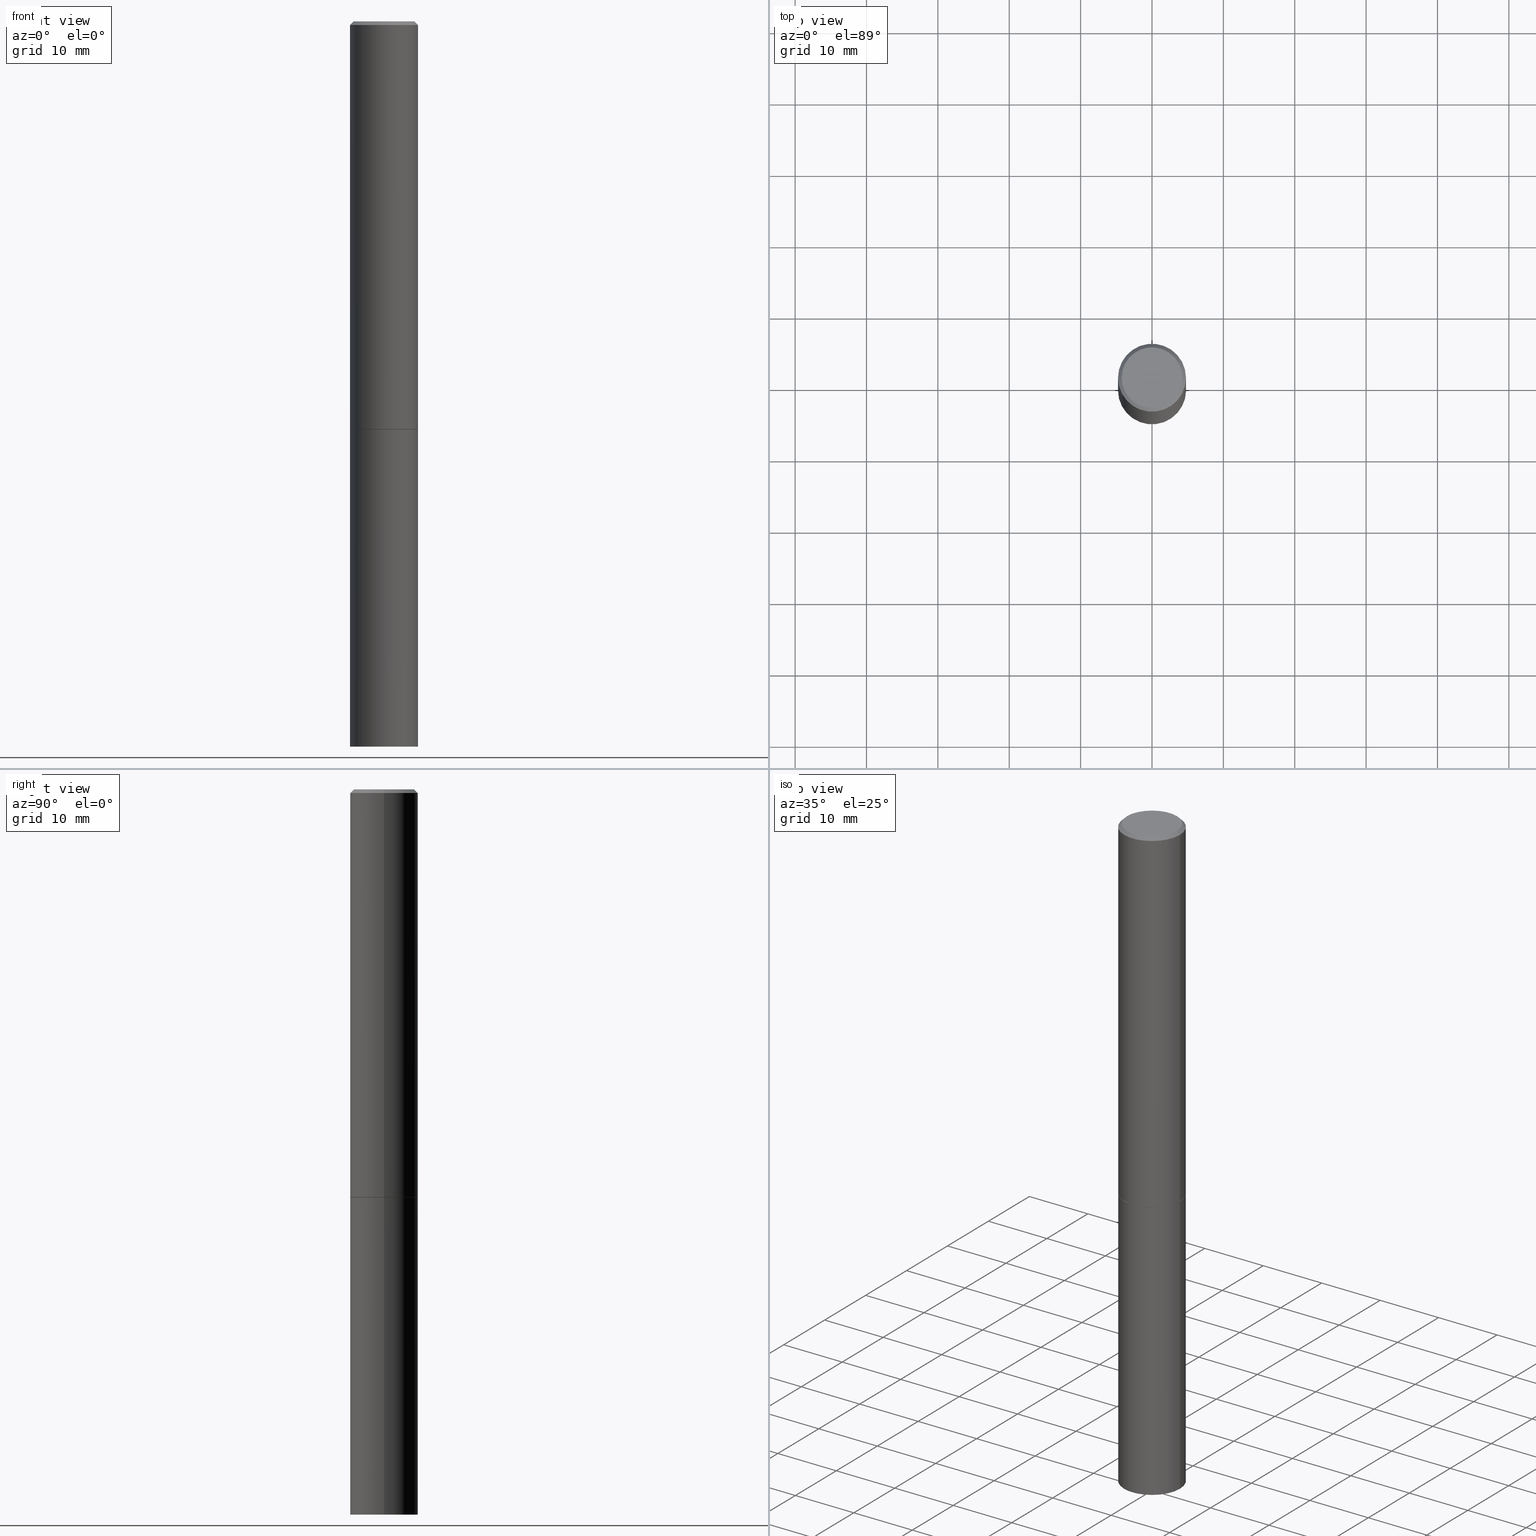
[diagram: canonical four-view strip — front | top / right | iso, engineering-drawing reading convention]
A machine part, canonical four-view strip (front | top / right | iso — engineering-drawing reading convention). The complete STEP part file that produces these views, byte-faithful:
ISO-10303-21;
HEADER;
FILE_DESCRIPTION (( 'STEP AP203' ),
    '1' );
FILE_NAME ('31962.STEP',
    '2024-02-27T14:27:44',
    ( '' ),
    ( '' ),
    'SwSTEP 2.0',
    'SolidWorks 2023',
    '' );
FILE_SCHEMA (( 'CONFIG_CONTROL_DESIGN' ));
ENDSEC;

DATA;
#1 = CARTESIAN_POINT ( 'NONE',  ( 1.309305502066272827E-15, 0.1874999999999860389, -4.000000000000000888 ) ) ;
#2 = DIRECTION ( 'NONE',  ( 1.000000000000000000, 0.000000000000000000, 0.000000000000000000 ) ) ;
#3 = AXIS2_PLACEMENT_3D ( 'NONE', #206, #238, #46 ) ;
#4 = ORIENTED_EDGE ( 'NONE', *, *, #148, .F. ) ;
#5 = EDGE_CURVE ( 'NONE', #68, #230, #110, .T. ) ;
#6 = CARTESIAN_POINT ( 'NONE',  ( 9.781875224740546387E-29, -1.396592535537258233E-14, -4.000000000000000000 ) ) ;
#7 = CARTESIAN_POINT ( 'NONE',  ( 0.000000000000000000, 0.000000000000000000, 0.000000000000000000 ) ) ;
#8 = DIRECTION ( 'NONE',  ( 1.000000000000000000, -6.982962677686265922E-15, 4.876176775795935793E-29 ) ) ;
#9 = CIRCLE ( 'NONE', #360, 0.1875000000000000278 ) ;
#10 = ADVANCED_FACE ( 'NONE', ( #94 ), #354, .T. ) ;
#11 = CARTESIAN_POINT ( 'NONE',  ( 0.000000000000000000, 0.000000000000000000, 0.000000000000000000 ) ) ;
#12 = CARTESIAN_POINT ( 'NONE',  ( 0.1864999999999999714, -9.158155551785567442E-15, -2.250000000000000444 ) ) ;
#13 = CALENDAR_DATE ( 2024, 27, 2 ) ;
#14 = ORIENTED_EDGE ( 'NONE', *, *, #5, .T. ) ;
#15 = FACE_OUTER_BOUND ( 'NONE', #143, .T. ) ;
#16 = CARTESIAN_POINT ( 'NONE',  ( -0.1875000000000000278, -9.578611554334641752E-15, -4.000000000000000000 ) ) ;
#17 = LOCAL_TIME ( 9, 27, 44.00000000000000000, #287 ) ;
#18 = VERTEX_POINT ( 'NONE', #45 ) ;
#19 = DIRECTION ( 'NONE',  ( -2.445468806185136597E-29, 3.491481338843145583E-15, 1.000000000000000000 ) ) ;
#20 = LINE ( 'NONE', #65, #301 ) ;
#21 = PERSON_AND_ORGANIZATION ( #222, #279 ) ;
#22 = DIRECTION ( 'NONE',  ( 0.7071067811865466846, -7.319954787623252890E-15, -0.7071067811865483499 ) ) ;
#23 = AXIS2_PLACEMENT_3D ( 'NONE', #11, #173, #113 ) ;
#24 = APPROVAL_ROLE ( '' ) ;
#25 = AXIS2_PLACEMENT_3D ( 'NONE', #264, #19, #75 ) ;
#26 = FACE_OUTER_BOUND ( 'NONE', #171, .T. ) ;
#27 = COORDINATED_UNIVERSAL_TIME_OFFSET ( 5, 0, .BEHIND. ) ;
#28 = CARTESIAN_POINT ( 'NONE',  ( 0.1874999999999998890, -1.309305502066174022E-15, 9.142831454617374006E-30 ) ) ;
#29 = PERSON_AND_ORGANIZATION ( #222, #279 ) ;
#30 = EDGE_CURVE ( 'NONE', #321, #62, #247, .T. ) ;
#31 = AXIS2_PLACEMENT_3D ( 'NONE', #106, #278, #33 ) ;
#32 = AXIS2_PLACEMENT_3D ( 'NONE', #183, #356, #56 ) ;
#33 = DIRECTION ( 'NONE',  ( 1.000000000000000000, -6.982962677686269077E-15, 0.000000000000000000 ) ) ;
#34 = DIRECTION ( 'NONE',  ( 1.000000000000000000, -6.982962677686269077E-15, 0.000000000000000000 ) ) ;
#35 = CIRCLE ( 'NONE', #196, 0.1674999999999997602 ) ;
#36 = ORIENTED_EDGE ( 'NONE', *, *, #223, .F. ) ;
#37 = CALENDAR_DATE ( 2024, 27, 2 ) ;
#38 = CC_DESIGN_PERSON_AND_ORGANIZATION_ASSIGNMENT ( #363, #244, ( #234 ) ) ;
#39 = EDGE_LOOP ( 'NONE', ( #355, #119, #339, #348 ) ) ;
#40 = ADVANCED_FACE ( 'NONE', ( #15 ), #87, .T. ) ;
#41 = DIRECTION ( 'NONE',  ( 1.000000000000000000, -6.982962677686261189E-15, 0.000000000000000000 ) ) ;
#42 = EDGE_LOOP ( 'NONE', ( #165, #330, #139, #201 ) ) ;
#43 = CIRCLE ( 'NONE', #25, 0.1874999999999997502 ) ;
#44 = AXIS2_PLACEMENT_3D ( 'NONE', #166, #288, #8 ) ;
#45 = CARTESIAN_POINT ( 'NONE',  ( 0.1874999999999997502, -1.356173001359023494E-15, -0.02000000000000004205 ) ) ;
#46 = DIRECTION ( 'NONE',  ( 1.000000000000000000, -6.982962677686265922E-15, 4.876176775795935793E-29 ) ) ;
#47 = CARTESIAN_POINT ( 'NONE',  ( 1.169646248512447820E-15, 0.1674999999999997602, -5.848231242562259809E-16 ) ) ;
#48 = CARTESIAN_POINT ( 'NONE',  ( 4.890937612370283668E-31, -6.982962677686305168E-17, -0.02000000000000004205 ) ) ;
#49 = DATE_AND_TIME ( #265, #118 ) ;
#50 = MANIFOLD_SOLID_BREP ( 'Body-Move/Copy2[2]', #77 ) ;
#51 = DIRECTION ( 'NONE',  ( 1.000000000000000000, -6.982962677686269077E-15, 0.000000000000000000 ) ) ;
#52 = DIRECTION ( 'NONE',  ( -0.7071067811865466846, 2.468850131082247989E-15, -0.7071067811865483499 ) ) ;
#53 = AXIS2_PLACEMENT_3D ( 'NONE', #48, #303, #294 ) ;
#54 = FACE_OUTER_BOUND ( 'NONE', #258, .T. ) ;
#55 = LINE ( 'NONE', #232, #61 ) ;
#56 = DIRECTION ( 'NONE',  ( 1.000000000000000000, -6.982962677686261189E-15, 0.000000000000000000 ) ) ;
#57 = APPROVAL_STATUS ( 'not_yet_approved' ) ;
#58 = AXIS2_PLACEMENT_3D ( 'NONE', #7, #192, #2 ) ;
#59 = PERSON_AND_ORGANIZATION ( #222, #279 ) ;
#60 = PERSON_AND_ORGANIZATION_ROLE ( 'classification_officer' ) ;
#61 = VECTOR ( 'NONE', #52, 39.37007874015748143 ) ;
#62 = VERTEX_POINT ( 'NONE', #176 ) ;
#63 = ADVANCED_FACE ( 'NONE', ( #54 ), #147, .F. ) ;
#64 = EDGE_LOOP ( 'NONE', ( #108, #318, #293, #89 ) ) ;
#65 = CARTESIAN_POINT ( 'NONE',  ( 0.1874999999999997502, -1.356173001359023494E-15, -0.02000000000000004205 ) ) ;
#66 = VECTOR ( 'NONE', #109, 39.37007874015748143 ) ;
#67 = LINE ( 'NONE', #28, #292 ) ;
#68 = VERTEX_POINT ( 'NONE', #237 ) ;
#69 = FACE_OUTER_BOUND ( 'NONE', #64, .T. ) ;
#70 = DATE_TIME_ROLE ( 'classification_date' ) ;
#71 = EDGE_CURVE ( 'NONE', #230, #68, #35, .T. ) ;
#72 = DIRECTION ( 'NONE',  ( 1.000000000000000000, -6.982962677686269077E-15, 0.000000000000000000 ) ) ;
#73 = LINE ( 'NONE', #269, #197 ) ;
#74 = ORIENTED_EDGE ( 'NONE', *, *, #207, .T. ) ;
#75 = DIRECTION ( 'NONE',  ( 1.000000000000000000, -6.982962677686265133E-15, 0.000000000000000000 ) ) ;
#76 = APPROVAL ( #154, 'UNSPECIFIED' ) ;
#77 = CLOSED_SHELL ( 'NONE', ( #40, #132, #216, #112, #322, #10, #302, #63 ) ) ;
#78 = DIRECTION ( 'NONE',  ( 2.438088387897960049E-29, -3.491481338843145188E-15, -1.000000000000000000 ) ) ;
#79 = DIRECTION ( 'NONE',  ( -1.000000000000000000, 6.982962677686265922E-15, -4.876176775795935793E-29 ) ) ;
#80 = APPLICATION_PROTOCOL_DEFINITION ( 'international standard', 'config_control_design', 1994, #167 ) ;
#81 = CYLINDRICAL_SURFACE ( 'NONE', #107, 0.1874999999999998890 ) ;
#82 = VECTOR ( 'NONE', #121, 39.37007874015748143 ) ;
#83 = ADVANCED_FACE ( 'NONE', ( #26 ), #252, .F. ) ;
#84 = APPROVAL_DATE_TIME ( #136, #284 ) ;
#85 = ADVANCED_BREP_SHAPE_REPRESENTATION ( '31962', ( #291, #50, #58 ), #228 ) ;
#86 = FACE_OUTER_BOUND ( 'NONE', #175, .T. ) ;
#87 = CONICAL_SURFACE ( 'NONE', #346, 0.1864999999999999714, 0.7853981633972946241 ) ;
#88 = CARTESIAN_POINT ( 'NONE',  ( 5.502304813916557343E-29, -7.855833012397078448E-15, -2.250000000000000000 ) ) ;
#89 = ORIENTED_EDGE ( 'NONE', *, *, #30, .F. ) ;
#90 = EDGE_LOOP ( 'NONE', ( #202, #91 ) ) ;
#91 = ORIENTED_EDGE ( 'NONE', *, *, #161, .F. ) ;
#92 = VERTEX_POINT ( 'NONE', #159 ) ;
#93 = DIRECTION ( 'NONE',  ( -2.445468806185136597E-29, 3.491481338843145583E-15, 1.000000000000000000 ) ) ;
#94 = FACE_OUTER_BOUND ( 'NONE', #179, .T. ) ;
#95 = FACE_OUTER_BOUND ( 'NONE', #225, .T. ) ;
#96 = ORIENTED_EDGE ( 'NONE', *, *, #30, .T. ) ;
#97 = CARTESIAN_POINT ( 'NONE',  ( 0.1875000000000000278, -9.161647033124408872E-15, -2.249000000000000110 ) ) ;
#98 = ADVANCED_FACE ( 'NONE', ( #128 ), #160, .T. ) ;
#99 = AXIS2_PLACEMENT_3D ( 'NONE', #169, #290, #41 ) ;
#100 = CARTESIAN_POINT ( 'NONE',  ( 5.499859345110371740E-29, -7.852341531058233864E-15, -2.249000000000000110 ) ) ;
#101 = EDGE_CURVE ( 'NONE', #365, #289, #130, .T. ) ;
#102 = CLOSED_SHELL ( 'NONE', ( #188, #98, #83, #349 ) ) ;
#103 = DATE_AND_TIME ( #186, #131 ) ;
#104 = AXIS2_PLACEMENT_3D ( 'NONE', #6, #319, #170 ) ;
#105 = ORIENTED_EDGE ( 'NONE', *, *, #71, .T. ) ;
#106 = CARTESIAN_POINT ( 'NONE',  ( 5.502304813916558464E-29, -7.855833012397078448E-15, -2.250000000000000444 ) ) ;
#107 = AXIS2_PLACEMENT_3D ( 'NONE', #190, #313, #280 ) ;
#108 = ORIENTED_EDGE ( 'NONE', *, *, #178, .F. ) ;
#109 = DIRECTION ( 'NONE',  ( -2.445468806185136877E-29, 3.491481338843145188E-15, 1.000000000000000000 ) ) ;
#110 = CIRCLE ( 'NONE', #23, 0.1674999999999997602 ) ;
#111 = APPROVAL_PERSON_ORGANIZATION ( #309, #76, #24 ) ;
#112 = ADVANCED_FACE ( 'NONE', ( #250 ), #220, .T. ) ;
#113 = DIRECTION ( 'NONE',  ( 1.000000000000000000, -6.982962677686265922E-15, 4.876176775795935793E-29 ) ) ;
#114 = DIRECTION ( 'NONE',  ( 0.7071067811864388819, -2.468850131081119129E-15, 0.7071067811866561525 ) ) ;
#115 = DATE_AND_TIME ( #13, #364 ) ;
#116 = CARTESIAN_POINT ( 'NONE',  ( 5.502304813916557343E-29, -7.855833012397078448E-15, -2.250000000000000000 ) ) ;
#117 = CARTESIAN_POINT ( 'NONE',  ( 4.890937612370283668E-31, -6.982962677686305168E-17, -0.02000000000000004205 ) ) ;
#118 = LOCAL_TIME ( 9, 27, 44.00000000000000000, #337 ) ;
#119 = ORIENTED_EDGE ( 'NONE', *, *, #223, .T. ) ;
#120 = ORIENTED_EDGE ( 'NONE', *, *, #178, .T. ) ;
#121 = DIRECTION ( 'NONE',  ( -0.7071067811864388819, 7.493145998869961307E-15, 0.7071067811866561525 ) ) ;
#122 = ORIENTED_EDGE ( 'NONE', *, *, #101, .T. ) ;
#123 = CARTESIAN_POINT ( 'NONE',  ( 5.502304813916558464E-29, -7.855833012397078448E-15, -2.250000000000000444 ) ) ;
#124 = APPLICATION_PROTOCOL_DEFINITION ( 'international standard', 'config_control_design', 1994, #306 ) ;
#125 = CARTESIAN_POINT ( 'NONE',  ( -0.1875000000000000278, -9.578611554334641752E-15, -2.250000000000000000 ) ) ;
#126 = PERSON_AND_ORGANIZATION ( #222, #279 ) ;
#127 = CARTESIAN_POINT ( 'NONE',  ( 4.890937612370283668E-31, -6.982962677686305168E-17, -0.02000000000000004205 ) ) ;
#128 = FACE_OUTER_BOUND ( 'NONE', #90, .T. ) ;
#129 = APPROVAL_STATUS ( 'not_yet_approved' ) ;
#130 = CIRCLE ( 'NONE', #31, 0.1864999999999999714 ) ;
#131 = LOCAL_TIME ( 9, 27, 44.00000000000000000, #182 ) ;
#132 = ADVANCED_FACE ( 'NONE', ( #333 ), #81, .T. ) ;
#133 =( NAMED_UNIT ( * ) PLANE_ANGLE_UNIT ( ) SI_UNIT ( $, .RADIAN. ) );
#134 = ORIENTED_EDGE ( 'NONE', *, *, #285, .T. ) ;
#135 = CARTESIAN_POINT ( 'NONE',  ( -0.1875000000000000278, 1.332267629550188046E-15, -9.223003294227947991E-30 ) ) ;
#136 = DATE_AND_TIME ( #37, #17 ) ;
#137 = APPROVAL_DATE_TIME ( #49, #344 ) ;
#138 = FACE_OUTER_BOUND ( 'NONE', #298, .T. ) ;
#139 = ORIENTED_EDGE ( 'NONE', *, *, #317, .T. ) ;
#140 = CC_DESIGN_SECURITY_CLASSIFICATION ( #215, ( #234 ) ) ;
#141 = ORIENTED_EDGE ( 'NONE', *, *, #235, .F. ) ;
#142 = DIRECTION ( 'NONE',  ( -2.445468806185136877E-29, 3.491481338843145188E-15, 1.000000000000000000 ) ) ;
#143 = EDGE_LOOP ( 'NONE', ( #122, #134, #203, #323 ) ) ;
#144 = CARTESIAN_POINT ( 'NONE',  ( 5.502304813916558464E-29, -7.855833012397078448E-15, -2.250000000000000444 ) ) ;
#145 = DIRECTION ( 'NONE',  ( -2.445468806185136597E-29, 3.491481338843145583E-15, 1.000000000000000000 ) ) ;
#146 = PRODUCT_RELATED_PRODUCT_CATEGORY ( 'detail', '', ( #189 ) ) ;
#147 = PLANE ( 'NONE',  #359 ) ;
#148 = EDGE_CURVE ( 'NONE', #62, #321, #273, .T. ) ;
#149 = DIRECTION ( 'NONE',  ( -2.445468806185136597E-29, 3.491481338843145583E-15, 1.000000000000000000 ) ) ;
#150 = CIRCLE ( 'NONE', #53, 0.1874999999999997502 ) ;
#151 = CYLINDRICAL_SURFACE ( 'NONE', #262, 0.1874999999999998890 ) ;
#152 = APPROVAL_DATE_TIME ( #103, #76 ) ;
#153 = DIRECTION ( 'NONE',  ( 1.000000000000000000, -6.982962677686261189E-15, 0.000000000000000000 ) ) ;
#154 = APPROVAL_STATUS ( 'not_yet_approved' ) ;
#155 = UNCERTAINTY_MEASURE_WITH_UNIT (LENGTH_MEASURE( 1.000000000000000082E-05 ), #163, 'distance_accuracy_value', 'NONE');
#156 = CIRCLE ( 'NONE', #104, 0.1875000000000000278 ) ;
#157 = CONICAL_SURFACE ( 'NONE', #316, 0.1874999999999997502, 0.7853981633974471688 ) ;
#158 = PERSON_AND_ORGANIZATION_ROLE ( 'design_owner' ) ;
#159 = CARTESIAN_POINT ( 'NONE',  ( -0.1875000000000000278, -2.628817949367357971E-15, -2.249000000000000110 ) ) ;
#160 = PLANE ( 'NONE',  #191 ) ;
#161 = EDGE_CURVE ( 'NONE', #295, #352, #156, .T. ) ;
#162 = CIRCLE ( 'NONE', #181, 0.1864999999999999714 ) ;
#163 =( CONVERSION_BASED_UNIT ( 'INCH', #314 ) LENGTH_UNIT ( ) NAMED_UNIT ( #213 ) );
#164 = CIRCLE ( 'NONE', #99, 0.1875000000000000278 ) ;
#165 = ORIENTED_EDGE ( 'NONE', *, *, #281, .F. ) ;
#166 = CARTESIAN_POINT ( 'NONE',  ( 0.000000000000000000, 0.000000000000000000, 0.000000000000000000 ) ) ;
#167 = APPLICATION_CONTEXT ( 'configuration controlled 3d designs of mechanical parts and assemblies' ) ;
#168 = ORIENTED_EDGE ( 'NONE', *, *, #308, .T. ) ;
#169 = CARTESIAN_POINT ( 'NONE',  ( 9.781875224740546387E-29, -1.396592535537258233E-14, -4.000000000000000000 ) ) ;
#170 = DIRECTION ( 'NONE',  ( 1.000000000000000000, -6.982962677686261189E-15, 0.000000000000000000 ) ) ;
#171 = EDGE_LOOP ( 'NONE', ( #263, #96 ) ) ;
#172 = CARTESIAN_POINT ( 'NONE',  ( -0.1864999999999999714, -6.530670810204491608E-15, -2.250000000000000444 ) ) ;
#173 = DIRECTION ( 'NONE',  ( -2.445468806185136597E-29, 3.491481338843145583E-15, 1.000000000000000000 ) ) ;
#174 = CARTESIAN_POINT ( 'NONE',  ( -0.1874999999999998890, 1.332267629550187060E-15, -9.223003294227942385E-30 ) ) ;
#175 = EDGE_LOOP ( 'NONE', ( #74, #120, #4, #141 ) ) ;
#176 = CARTESIAN_POINT ( 'NONE',  ( 0.1875000000000000278, -9.165138514463253457E-15, -2.250000000000000000 ) ) ;
#177 = CARTESIAN_POINT ( 'NONE',  ( 0.000000000000000000, 0.000000000000000000, 0.000000000000000000 ) ) ;
#178 = EDGE_CURVE ( 'NONE', #295, #321, #261, .T. ) ;
#179 = EDGE_LOOP ( 'NONE', ( #208, #286, #351, #36 ) ) ;
#180 = CARTESIAN_POINT ( 'NONE',  ( 0.1674999999999997602, -1.252653207992876711E-15, 8.469775550109228175E-30 ) ) ;
#181 = AXIS2_PLACEMENT_3D ( 'NONE', #123, #240, #34 ) ;
#182 = COORDINATED_UNIVERSAL_TIME_OFFSET ( 5, 0, .BEHIND. ) ;
#183 = CARTESIAN_POINT ( 'NONE',  ( 5.499859345110371740E-29, -7.852341531058233864E-15, -2.249000000000000110 ) ) ;
#184 = COORDINATED_UNIVERSAL_TIME_OFFSET ( 5, 0, .BEHIND. ) ;
#185 = AXIS2_PLACEMENT_3D ( 'NONE', #300, #266, #51 ) ;
#186 = CALENDAR_DATE ( 2024, 27, 2 ) ;
#187 = DIRECTION ( 'NONE',  ( -1.000000000000000000, 6.982962677686265922E-15, -4.876176775795935793E-29 ) ) ;
#188 = ADVANCED_FACE ( 'NONE', ( #86 ), #195, .T. ) ;
#189 = PRODUCT ( '31962', '31962', '', ( #310 ) ) ;
#190 = CARTESIAN_POINT ( 'NONE',  ( 0.000000000000000000, 0.000000000000000000, 0.000000000000000000 ) ) ;
#191 = AXIS2_PLACEMENT_3D ( 'NONE', #1, #338, #79 ) ;
#192 = DIRECTION ( 'NONE',  ( 0.000000000000000000, 0.000000000000000000, 1.000000000000000000 ) ) ;
#193 = LOCAL_TIME ( 9, 27, 44.00000000000000000, #27 ) ;
#194 = EDGE_LOOP ( 'NONE', ( #198, #350, #224, #345 ) ) ;
#195 = CYLINDRICAL_SURFACE ( 'NONE', #44, 0.1875000000000000278 ) ;
#196 = AXIS2_PLACEMENT_3D ( 'NONE', #357, #336, #248 ) ;
#197 = VECTOR ( 'NONE', #142, 39.37007874015748143 ) ;
#198 = ORIENTED_EDGE ( 'NONE', *, *, #226, .T. ) ;
#199 = DIRECTION ( 'NONE',  ( 1.000000000000000000, -6.982962677686266711E-15, 0.000000000000000000 ) ) ;
#200 = ORIENTED_EDGE ( 'NONE', *, *, #317, .F. ) ;
#201 = ORIENTED_EDGE ( 'NONE', *, *, #296, .T. ) ;
#202 = ORIENTED_EDGE ( 'NONE', *, *, #207, .F. ) ;
#203 = ORIENTED_EDGE ( 'NONE', *, *, #226, .F. ) ;
#204 = LINE ( 'NONE', #174, #274 ) ;
#205 = DIRECTION ( 'NONE',  ( 1.000000000000000000, -6.982962677686266711E-15, 0.000000000000000000 ) ) ;
#206 = CARTESIAN_POINT ( 'NONE',  ( 5.502304813916558464E-29, -7.855833012397078448E-15, -2.250000000000000444 ) ) ;
#207 = EDGE_CURVE ( 'NONE', #352, #295, #164, .T. ) ;
#208 = ORIENTED_EDGE ( 'NONE', *, *, #285, .F. ) ;
#209 = DIRECTION ( 'NONE',  ( 1.000000000000000000, -6.982962677686265922E-15, 4.876176775795935793E-29 ) ) ;
#210 = PERSON_AND_ORGANIZATION_ROLE ( 'design_supplier' ) ;
#211 = CIRCLE ( 'NONE', #32, 0.1875000000000000278 ) ;
#212 = DIRECTION ( 'NONE',  ( -1.000000000000000000, 6.982962677686265133E-15, 0.000000000000000000 ) ) ;
#213 = DIMENSIONAL_EXPONENTS ( 1.000000000000000000, 0.000000000000000000, 0.000000000000000000, 0.000000000000000000, 0.000000000000000000, 0.000000000000000000, 0.000000000000000000 ) ;
#214 = DATE_AND_TIME ( #245, #193 ) ;
#215 = SECURITY_CLASSIFICATION ( '', '', #299 ) ;
#216 = ADVANCED_FACE ( 'NONE', ( #138 ), #157, .T. ) ;
#217 = APPROVAL_ROLE ( '' ) ;
#218 = DIRECTION ( 'NONE',  ( 2.445468806185136597E-29, -3.491481338843145583E-15, -1.000000000000000000 ) ) ;
#219 = DIRECTION ( 'NONE',  ( -2.445468806185136877E-29, 3.491481338843145188E-15, 1.000000000000000000 ) ) ;
#220 = CONICAL_SURFACE ( 'NONE', #227, 0.1874999999999997502, 0.7853981633974471688 ) ;
#221 = APPROVAL_PERSON_ORGANIZATION ( #29, #344, #217 ) ;
#222 = PERSON ( 'UNSPECIFIED', 'UNSPECIFIED', 'UNSPECIFIED', ('UNSPECIFIED'), ('UNSPECIFIED'), ('UNSPECIFIED') ) ;
#223 = EDGE_CURVE ( 'NONE', #92, #320, #211, .T. ) ;
#224 = ORIENTED_EDGE ( 'NONE', *, *, #308, .F. ) ;
#225 = EDGE_LOOP ( 'NONE', ( #331, #315 ) ) ;
#226 = EDGE_CURVE ( 'NONE', #320, #92, #9, .T. ) ;
#227 = AXIS2_PLACEMENT_3D ( 'NONE', #127, #218, #342 ) ;
#228 =( GEOMETRIC_REPRESENTATION_CONTEXT ( 3 ) GLOBAL_UNCERTAINTY_ASSIGNED_CONTEXT ( ( #155 ) ) GLOBAL_UNIT_ASSIGNED_CONTEXT ( ( #163, #133, #254 ) ) REPRESENTATION_CONTEXT ( 'NONE', 'WORKASPACE' ) );
#229 = PERSON_AND_ORGANIZATION ( #222, #279 ) ;
#230 = VERTEX_POINT ( 'NONE', #180 ) ;
#231 = CC_DESIGN_DATE_AND_TIME_ASSIGNMENT ( #115, #70, ( #215 ) ) ;
#232 = CARTESIAN_POINT ( 'NONE',  ( -0.1874999999999997502, 1.239475875289309935E-15, -0.02000000000000004205 ) ) ;
#233 = DIRECTION ( 'NONE',  ( 2.438088387897960049E-29, -3.491481338843145188E-15, -1.000000000000000000 ) ) ;
#234 = PRODUCT_DEFINITION_FORMATION_WITH_SPECIFIED_SOURCE ( 'ANY', '', #189, .NOT_KNOWN. ) ;
#235 = EDGE_CURVE ( 'NONE', #352, #62, #73, .T. ) ;
#236 = DIRECTION ( 'NONE',  ( 2.445468806185136597E-29, -3.491481338843145583E-15, -1.000000000000000000 ) ) ;
#237 = CARTESIAN_POINT ( 'NONE',  ( -0.1674999999999997602, 1.204561061900878878E-15, -8.301862719484099178E-30 ) ) ;
#238 = DIRECTION ( 'NONE',  ( -2.438088387897960049E-29, 3.491481338843145188E-15, 1.000000000000000000 ) ) ;
#239 = DESIGN_CONTEXT ( 'detailed design', #306, 'design' ) ;
#240 = DIRECTION ( 'NONE',  ( -2.445468806185136597E-29, 3.491481338843145583E-15, 1.000000000000000000 ) ) ;
#241 = CC_DESIGN_DATE_AND_TIME_ASSIGNMENT ( #214, #334, ( #271 ) ) ;
#242 = DIRECTION ( 'NONE',  ( 1.000000000000000000, -6.982962677686265922E-15, 4.876176775795935793E-29 ) ) ;
#243 = VECTOR ( 'NONE', #114, 39.37007874015748143 ) ;
#244 = PERSON_AND_ORGANIZATION_ROLE ( 'creator' ) ;
#245 = CALENDAR_DATE ( 2024, 27, 2 ) ;
#246 = EDGE_CURVE ( 'NONE', #92, #326, #204, .T. ) ;
#247 = CIRCLE ( 'NONE', #282, 0.1875000000000000278 ) ;
#248 = DIRECTION ( 'NONE',  ( 1.000000000000000000, -6.982962677686265922E-15, 4.876176775795935793E-29 ) ) ;
#249 = CC_DESIGN_APPROVAL ( #284, ( #215 ) ) ;
#250 = FACE_OUTER_BOUND ( 'NONE', #42, .T. ) ;
#251 = SHAPE_DEFINITION_REPRESENTATION ( #311, #85 ) ;
#252 = PLANE ( 'NONE',  #335 ) ;
#253 = APPROVAL_ROLE ( '' ) ;
#254 =( NAMED_UNIT ( * ) SI_UNIT ( $, .STERADIAN. ) SOLID_ANGLE_UNIT ( ) );
#255 = DIRECTION ( 'NONE',  ( -2.445468806185136597E-29, 3.491481338843145583E-15, 1.000000000000000000 ) ) ;
#256 =( LENGTH_UNIT ( ) NAMED_UNIT ( * ) SI_UNIT ( $, .METRE. ) );
#257 = CC_DESIGN_APPROVAL ( #344, ( #234 ) ) ;
#258 = EDGE_LOOP ( 'NONE', ( #14, #105 ) ) ;
#259 = ORIENTED_EDGE ( 'NONE', *, *, #71, .F. ) ;
#260 = EDGE_CURVE ( 'NONE', #365, #320, #272, .T. ) ;
#261 = LINE ( 'NONE', #135, #66 ) ;
#262 = AXIS2_PLACEMENT_3D ( 'NONE', #353, #93, #242 ) ;
#263 = ORIENTED_EDGE ( 'NONE', *, *, #148, .T. ) ;
#264 = CARTESIAN_POINT ( 'NONE',  ( 4.890937612370283668E-31, -6.982962677686305168E-17, -0.02000000000000004205 ) ) ;
#265 = CALENDAR_DATE ( 2024, 27, 2 ) ;
#266 = DIRECTION ( 'NONE',  ( -2.445468806185136597E-29, 3.491481338843145583E-15, 1.000000000000000000 ) ) ;
#267 = LINE ( 'NONE', #172, #82 ) ;
#268 = DIRECTION ( 'NONE',  ( -1.000000000000000000, 6.982962677686265922E-15, -4.876176775795935793E-29 ) ) ;
#269 = CARTESIAN_POINT ( 'NONE',  ( 0.1875000000000000278, -1.309305502066175008E-15, 9.142831454617381013E-30 ) ) ;
#270 = CARTESIAN_POINT ( 'NONE',  ( 0.1875000000000000278, -1.527523085743875734E-14, -4.000000000000000000 ) ) ;
#271 = PRODUCT_DEFINITION ( 'UNKNOWN', '', #234, #239 ) ;
#272 = LINE ( 'NONE', #12, #243 ) ;
#273 = CIRCLE ( 'NONE', #324, 0.1875000000000000278 ) ;
#274 = VECTOR ( 'NONE', #304, 39.37007874015748143 ) ;
#275 = PERSON_AND_ORGANIZATION_ROLE ( 'creator' ) ;
#276 = CARTESIAN_POINT ( 'NONE',  ( 1.309305502066230031E-15, 0.1874999999999921729, -2.250000000000000444 ) ) ;
#277 = ORIENTED_EDGE ( 'NONE', *, *, #281, .T. ) ;
#278 = DIRECTION ( 'NONE',  ( -2.445468806185136597E-29, 3.491481338843145583E-15, 1.000000000000000000 ) ) ;
#279 = ORGANIZATION ( 'UNSPECIFIED', 'UNSPECIFIED', '' ) ;
#280 = DIRECTION ( 'NONE',  ( 1.000000000000000000, -6.982962677686265922E-15, 4.876176775795935793E-29 ) ) ;
#281 = EDGE_CURVE ( 'NONE', #230, #18, #20, .T. ) ;
#282 = AXIS2_PLACEMENT_3D ( 'NONE', #116, #297, #205 ) ;
#283 = CC_DESIGN_APPROVAL ( #76, ( #271 ) ) ;
#284 = APPROVAL ( #57, 'UNSPECIFIED' ) ;
#285 = EDGE_CURVE ( 'NONE', #289, #92, #267, .T. ) ;
#286 = ORIENTED_EDGE ( 'NONE', *, *, #362, .T. ) ;
#287 = COORDINATED_UNIVERSAL_TIME_OFFSET ( 5, 0, .BEHIND. ) ;
#288 = DIRECTION ( 'NONE',  ( -2.445468806185136597E-29, 3.491481338843145583E-15, 1.000000000000000000 ) ) ;
#289 = VERTEX_POINT ( 'NONE', #358 ) ;
#290 = DIRECTION ( 'NONE',  ( -2.445468806185136597E-29, 3.491481338843145583E-15, 1.000000000000000000 ) ) ;
#291 = MANIFOLD_SOLID_BREP ( 'Body-Move/Copy2[1]', #102 ) ;
#292 = VECTOR ( 'NONE', #219, 39.37007874015748143 ) ;
#293 = ORIENTED_EDGE ( 'NONE', *, *, #235, .T. ) ;
#294 = DIRECTION ( 'NONE',  ( 1.000000000000000000, -6.982962677686265133E-15, 0.000000000000000000 ) ) ;
#295 = VERTEX_POINT ( 'NONE', #16 ) ;
#296 = EDGE_CURVE ( 'NONE', #326, #18, #150, .T. ) ;
#297 = DIRECTION ( 'NONE',  ( -2.445468806185136597E-29, 3.491481338843145583E-15, 1.000000000000000000 ) ) ;
#298 = EDGE_LOOP ( 'NONE', ( #259, #277, #168, #200 ) ) ;
#299 = SECURITY_CLASSIFICATION_LEVEL ( 'unclassified' ) ;
#300 = CARTESIAN_POINT ( 'NONE',  ( 5.502304813916558464E-29, -7.855833012397078448E-15, -2.250000000000000444 ) ) ;
#301 = VECTOR ( 'NONE', #22, 39.37007874015748143 ) ;
#302 = ADVANCED_FACE ( 'NONE', ( #95 ), #332, .F. ) ;
#303 = DIRECTION ( 'NONE',  ( -2.445468806185136597E-29, 3.491481338843145583E-15, 1.000000000000000000 ) ) ;
#304 = DIRECTION ( 'NONE',  ( -2.445468806185136877E-29, 3.491481338843145188E-15, 1.000000000000000000 ) ) ;
#305 = CC_DESIGN_PERSON_AND_ORGANIZATION_ASSIGNMENT ( #229, #60, ( #215 ) ) ;
#306 = APPLICATION_CONTEXT ( 'configuration controlled 3d designs of mechanical parts and assemblies' ) ;
#307 = PERSON_AND_ORGANIZATION ( #222, #279 ) ;
#308 = EDGE_CURVE ( 'NONE', #18, #326, #43, .T. ) ;
#309 = PERSON_AND_ORGANIZATION ( #222, #279 ) ;
#310 = MECHANICAL_CONTEXT ( 'NONE', #167, 'mechanical' ) ;
#311 = PRODUCT_DEFINITION_SHAPE ( 'NONE', 'NONE',  #271 ) ;
#312 = CC_DESIGN_PERSON_AND_ORGANIZATION_ASSIGNMENT ( #126, #275, ( #271 ) ) ;
#313 = DIRECTION ( 'NONE',  ( -2.445468806185136597E-29, 3.491481338843145583E-15, 1.000000000000000000 ) ) ;
#314 = LENGTH_MEASURE_WITH_UNIT ( LENGTH_MEASURE( 0.02539999999999999897 ), #256 );
#315 = ORIENTED_EDGE ( 'NONE', *, *, #362, .F. ) ;
#316 = AXIS2_PLACEMENT_3D ( 'NONE', #117, #236, #212 ) ;
#317 = EDGE_CURVE ( 'NONE', #68, #326, #55, .T. ) ;
#318 = ORIENTED_EDGE ( 'NONE', *, *, #161, .T. ) ;
#319 = DIRECTION ( 'NONE',  ( -2.445468806185136597E-29, 3.491481338843145583E-15, 1.000000000000000000 ) ) ;
#320 = VERTEX_POINT ( 'NONE', #97 ) ;
#321 = VERTEX_POINT ( 'NONE', #125 ) ;
#322 = ADVANCED_FACE ( 'NONE', ( #361 ), #151, .T. ) ;
#323 = ORIENTED_EDGE ( 'NONE', *, *, #260, .F. ) ;
#324 = AXIS2_PLACEMENT_3D ( 'NONE', #88, #255, #199 ) ;
#325 = CARTESIAN_POINT ( 'NONE',  ( 0.1864999999999999714, -9.158155551785567442E-15, -2.250000000000000444 ) ) ;
#326 = VERTEX_POINT ( 'NONE', #327 ) ;
#327 = CARTESIAN_POINT ( 'NONE',  ( -0.1874999999999997502, 1.239475875289309935E-15, -0.02000000000000004205 ) ) ;
#328 = DIRECTION ( 'NONE',  ( -2.445468806185136597E-29, 3.491481338843145583E-15, 1.000000000000000000 ) ) ;
#329 = CYLINDRICAL_SURFACE ( 'NONE', #343, 0.1875000000000000278 ) ;
#330 = ORIENTED_EDGE ( 'NONE', *, *, #5, .F. ) ;
#331 = ORIENTED_EDGE ( 'NONE', *, *, #101, .F. ) ;
#332 = PLANE ( 'NONE',  #3 ) ;
#333 = FACE_OUTER_BOUND ( 'NONE', #194, .T. ) ;
#334 = DATE_TIME_ROLE ( 'creation_date' ) ;
#335 = AXIS2_PLACEMENT_3D ( 'NONE', #276, #78, #187 ) ;
#336 = DIRECTION ( 'NONE',  ( -2.445468806185136597E-29, 3.491481338843145583E-15, 1.000000000000000000 ) ) ;
#337 = COORDINATED_UNIVERSAL_TIME_OFFSET ( 5, 0, .BEHIND. ) ;
#338 = DIRECTION ( 'NONE',  ( 2.438088387897960049E-29, -3.491481338843145188E-15, -1.000000000000000000 ) ) ;
#339 = ORIENTED_EDGE ( 'NONE', *, *, #366, .T. ) ;
#340 = CC_DESIGN_PERSON_AND_ORGANIZATION_ASSIGNMENT ( #59, #210, ( #234 ) ) ;
#341 = CC_DESIGN_PERSON_AND_ORGANIZATION_ASSIGNMENT ( #307, #158, ( #189 ) ) ;
#342 = DIRECTION ( 'NONE',  ( -1.000000000000000000, 6.982962677686265133E-15, 0.000000000000000000 ) ) ;
#343 = AXIS2_PLACEMENT_3D ( 'NONE', #177, #149, #209 ) ;
#344 = APPROVAL ( #129, 'UNSPECIFIED' ) ;
#345 = ORIENTED_EDGE ( 'NONE', *, *, #366, .F. ) ;
#346 = AXIS2_PLACEMENT_3D ( 'NONE', #144, #328, #72 ) ;
#347 = APPROVAL_PERSON_ORGANIZATION ( #21, #284, #253 ) ;
#348 = ORIENTED_EDGE ( 'NONE', *, *, #296, .F. ) ;
#349 = ADVANCED_FACE ( 'NONE', ( #69 ), #329, .T. ) ;
#350 = ORIENTED_EDGE ( 'NONE', *, *, #246, .T. ) ;
#351 = ORIENTED_EDGE ( 'NONE', *, *, #260, .T. ) ;
#352 = VERTEX_POINT ( 'NONE', #270 ) ;
#353 = CARTESIAN_POINT ( 'NONE',  ( 0.000000000000000000, 0.000000000000000000, 0.000000000000000000 ) ) ;
#354 = CONICAL_SURFACE ( 'NONE', #185, 0.1864999999999999714, 0.7853981633972946241 ) ;
#355 = ORIENTED_EDGE ( 'NONE', *, *, #246, .F. ) ;
#356 = DIRECTION ( 'NONE',  ( -2.445468806185136597E-29, 3.491481338843145583E-15, 1.000000000000000000 ) ) ;
#357 = CARTESIAN_POINT ( 'NONE',  ( 0.000000000000000000, 0.000000000000000000, 0.000000000000000000 ) ) ;
#358 = CARTESIAN_POINT ( 'NONE',  ( -0.1864999999999999714, -6.525372355856269206E-15, -2.250000000000000444 ) ) ;
#359 = AXIS2_PLACEMENT_3D ( 'NONE', #47, #233, #268 ) ;
#360 = AXIS2_PLACEMENT_3D ( 'NONE', #100, #145, #153 ) ;
#361 = FACE_OUTER_BOUND ( 'NONE', #39, .T. ) ;
#362 = EDGE_CURVE ( 'NONE', #289, #365, #162, .T. ) ;
#363 = PERSON_AND_ORGANIZATION ( #222, #279 ) ;
#364 = LOCAL_TIME ( 9, 27, 44.00000000000000000, #184 ) ;
#365 = VERTEX_POINT ( 'NONE', #325 ) ;
#366 = EDGE_CURVE ( 'NONE', #320, #18, #67, .T. ) ;
ENDSEC;
END-ISO-10303-21;
